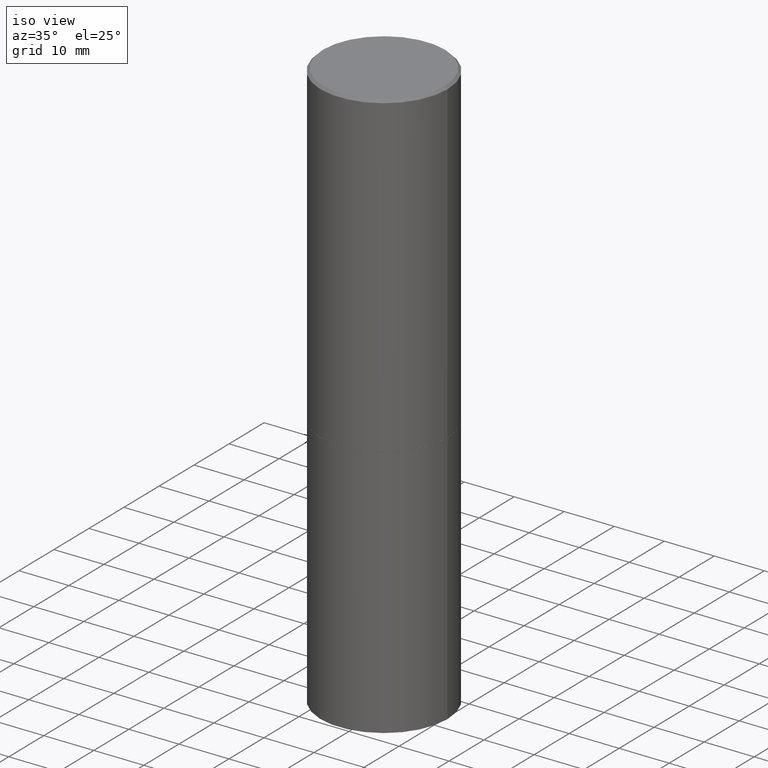
[diagram: clean part render]
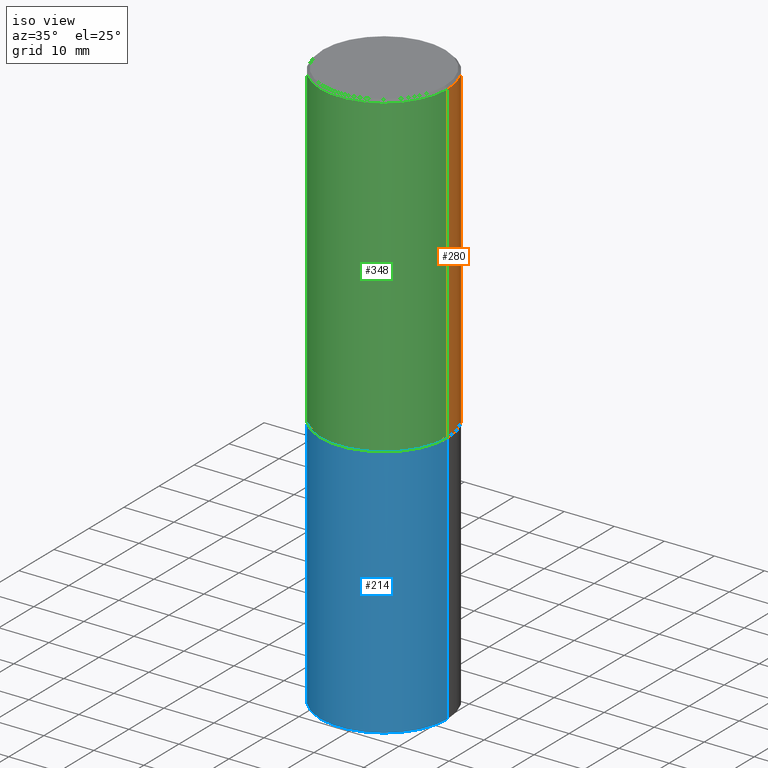
[diagram: same view with three faces highlighted in distinct colors, each labeled with its STEP entity id]
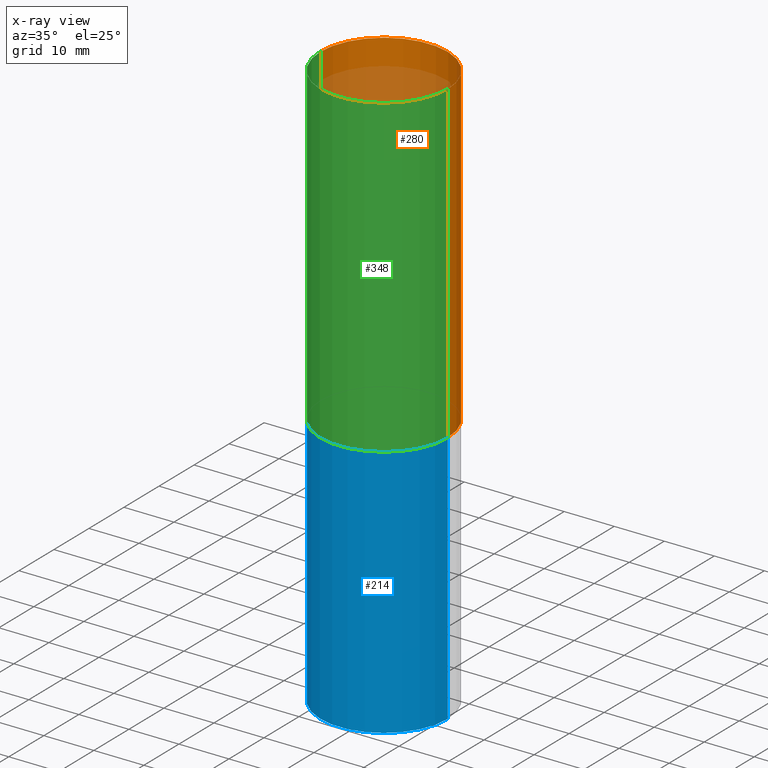
[diagram: x-ray of the same camera — body ghosted, the three highlighted faces saturated]
A machine part, iso view with three faces highlighted in distinct colors.
The next image is the same camera in x-ray (body ghosted, the three faces saturated) — at least one of them is partly hidden behind the body in this view.
Their STEP definitions:

[orange] entity #280 — the highlighted cylindrical surface (partial cylindrical patch) has radius 12.7 mm, axis along (-0, 0, 1).
#8 = VERTEX_POINT ( 'NONE', #13 ) ;
#13 = CARTESIAN_POINT ( 'NONE',  ( -0.4999999999999996669, 3.421651712066267691E-15, -0.02000000000000008021 ) ) ;
#18 = CIRCLE ( 'NONE', #252, 0.5000000000000000000 ) ;
#21 = CARTESIAN_POINT ( 'NONE',  ( 4.890937612370293302E-31, -6.982962677686318726E-17, -0.02000000000000008021 ) ) ;
#22 = DIRECTION ( 'NONE',  ( -2.445468806185136597E-29, 3.491481338843145583E-15, 1.000000000000000000 ) ) ;
#26 = FACE_OUTER_BOUND ( 'NONE', #207, .T. ) ;
#34 = VERTEX_POINT ( 'NONE', #265 ) ;
#46 = CARTESIAN_POINT ( 'NONE',  ( 0.4999999999999998335, -3.491481338843132566E-15, 2.438088387897967336E-29 ) ) ;
#78 = LINE ( 'NONE', #46, #108 ) ;
#80 = DIRECTION ( 'NONE',  ( 1.000000000000000000, -6.982962677686267499E-15, 4.876176775795936353E-29 ) ) ;
#82 = VECTOR ( 'NONE', #244, 39.37007874015748143 ) ;
#84 = CARTESIAN_POINT ( 'NONE',  ( 0.5000000000000000000, -1.221669320461215371E-14, -2.499000000000000110 ) ) ;
#91 = ORIENTED_EDGE ( 'NONE', *, *, #229, .F. ) ;
#105 = DIRECTION ( 'NONE',  ( -2.445468806185136597E-29, 3.491481338843145583E-15, 1.000000000000000000 ) ) ;
#106 = CARTESIAN_POINT ( 'NONE',  ( -0.5000000000000000000, -8.448070674724411945E-16, -2.499000000000000110 ) ) ;
#108 = VECTOR ( 'NONE', #364, 39.37007874015748143 ) ;
#110 = CYLINDRICAL_SURFACE ( 'NONE', #134, 0.4999999999999998335 ) ;
#132 = LINE ( 'NONE', #223, #82 ) ;
#134 = AXIS2_PLACEMENT_3D ( 'NONE', #250, #169, #80 ) ;
#136 = EDGE_CURVE ( 'NONE', #321, #34, #78, .T. ) ;
#143 = VERTEX_POINT ( 'NONE', #106 ) ;
#167 = EDGE_CURVE ( 'NONE', #143, #8, #132, .T. ) ;
#169 = DIRECTION ( 'NONE',  ( -2.445468806185136597E-29, 3.491481338843145583E-15, 1.000000000000000000 ) ) ;
#180 = ORIENTED_EDGE ( 'NONE', *, *, #167, .T. ) ;
#205 = AXIS2_PLACEMENT_3D ( 'NONE', #21, #22, #304 ) ;
#207 = EDGE_LOOP ( 'NONE', ( #315, #180, #91, #336 ) ) ;
#222 = DIRECTION ( 'NONE',  ( 1.000000000000000000, -6.982962677686265133E-15, 0.000000000000000000 ) ) ;
#223 = CARTESIAN_POINT ( 'NONE',  ( -0.4999999999999998335, 3.552713678800499746E-15, -2.459467545127452330E-29 ) ) ;
#229 = EDGE_CURVE ( 'NONE', #34, #8, #333, .T. ) ;
#244 = DIRECTION ( 'NONE',  ( -2.445468806185136877E-29, 3.491481338843145188E-15, 1.000000000000000000 ) ) ;
#250 = CARTESIAN_POINT ( 'NONE',  ( 0.000000000000000000, 0.000000000000000000, 0.000000000000000000 ) ) ;
#252 = AXIS2_PLACEMENT_3D ( 'NONE', #363, #105, #222 ) ;
#265 = CARTESIAN_POINT ( 'NONE',  ( 0.4999999999999996669, -3.500078625662626713E-15, -0.02000000000000008021 ) ) ;
#277 = EDGE_CURVE ( 'NONE', #321, #143, #18, .T. ) ;
#280 = ADVANCED_FACE ( 'NONE', ( #26 ), #110, .T. ) ;
#304 = DIRECTION ( 'NONE',  ( 1.000000000000000000, -6.982962677686266711E-15, 0.000000000000000000 ) ) ;
#315 = ORIENTED_EDGE ( 'NONE', *, *, #277, .T. ) ;
#321 = VERTEX_POINT ( 'NONE', #84 ) ;
#333 = CIRCLE ( 'NONE', #205, 0.4999999999999996669 ) ;
#336 = ORIENTED_EDGE ( 'NONE', *, *, #136, .F. ) ;
#363 = CARTESIAN_POINT ( 'NONE',  ( 6.111226546656657010E-29, -8.725211865769021935E-15, -2.499000000000000110 ) ) ;
#364 = DIRECTION ( 'NONE',  ( -2.445468806185136877E-29, 3.491481338843145188E-15, 1.000000000000000000 ) ) ;

[blue] entity #214 — the highlighted cylindrical surface (partial cylindrical patch) has radius 12.7 mm, axis along (-0, 0, 1).
#5 = CIRCLE ( 'NONE', #316, 0.5000000000000000000 ) ;
#15 = ORIENTED_EDGE ( 'NONE', *, *, #330, .T. ) ;
#17 = EDGE_LOOP ( 'NONE', ( #236, #15, #226, #186 ) ) ;
#48 = CYLINDRICAL_SURFACE ( 'NONE', #302, 0.5000000000000000000 ) ;
#61 = VERTEX_POINT ( 'NONE', #130 ) ;
#62 = VERTEX_POINT ( 'NONE', #242 ) ;
#70 = DIRECTION ( 'NONE',  ( 1.000000000000000000, -6.982962677686269077E-15, 0.000000000000000000 ) ) ;
#72 = EDGE_CURVE ( 'NONE', #61, #62, #5, .T. ) ;
#96 = CIRCLE ( 'NONE', #247, 0.5000000000000000000 ) ;
#101 = CARTESIAN_POINT ( 'NONE',  ( 0.5000000000000000000, -1.920314736363729025E-14, -4.500000000000000000 ) ) ;
#121 = VERTEX_POINT ( 'NONE', #101 ) ;
#130 = CARTESIAN_POINT ( 'NONE',  ( -0.5000000000000000000, -8.667471007150509990E-15, -2.500000000000000000 ) ) ;
#131 = LINE ( 'NONE', #332, #198 ) ;
#139 = EDGE_CURVE ( 'NONE', #121, #62, #164, .T. ) ;
#157 = CARTESIAN_POINT ( 'NONE',  ( 0.5000000000000000000, -3.491481338843133355E-15, 2.438088387897967896E-29 ) ) ;
#159 = CARTESIAN_POINT ( 'NONE',  ( 0.000000000000000000, 0.000000000000000000, 0.000000000000000000 ) ) ;
#164 = LINE ( 'NONE', #157, #312 ) ;
#172 = CARTESIAN_POINT ( 'NONE',  ( -0.5000000000000000000, -8.667471007150509990E-15, -4.500000000000000000 ) ) ;
#177 = EDGE_CURVE ( 'NONE', #365, #61, #131, .T. ) ;
#186 = ORIENTED_EDGE ( 'NONE', *, *, #72, .F. ) ;
#191 = DIRECTION ( 'NONE',  ( 1.000000000000000000, -6.982962677686266711E-15, 4.876176775795935793E-29 ) ) ;
#198 = VECTOR ( 'NONE', #303, 39.37007874015748143 ) ;
#201 = DIRECTION ( 'NONE',  ( 1.000000000000000000, -6.982962677686266711E-15, 0.000000000000000000 ) ) ;
#214 = ADVANCED_FACE ( 'NONE', ( #246 ), #48, .T. ) ;
#215 = DIRECTION ( 'NONE',  ( -2.445468806185136597E-29, 3.491481338843145583E-15, 1.000000000000000000 ) ) ;
#226 = ORIENTED_EDGE ( 'NONE', *, *, #139, .T. ) ;
#227 = CARTESIAN_POINT ( 'NONE',  ( 1.100460962783311469E-28, -1.571166602479415690E-14, -4.500000000000000000 ) ) ;
#236 = ORIENTED_EDGE ( 'NONE', *, *, #177, .F. ) ;
#242 = CARTESIAN_POINT ( 'NONE',  ( 0.5000000000000000000, -1.222018468595099830E-14, -2.500000000000000000 ) ) ;
#246 = FACE_OUTER_BOUND ( 'NONE', #17, .T. ) ;
#247 = AXIS2_PLACEMENT_3D ( 'NONE', #227, #311, #201 ) ;
#270 = DIRECTION ( 'NONE',  ( -2.445468806185136877E-29, 3.491481338843145188E-15, 1.000000000000000000 ) ) ;
#302 = AXIS2_PLACEMENT_3D ( 'NONE', #159, #359, #191 ) ;
#303 = DIRECTION ( 'NONE',  ( -2.445468806185136877E-29, 3.491481338843145188E-15, 1.000000000000000000 ) ) ;
#311 = DIRECTION ( 'NONE',  ( -2.445468806185136597E-29, 3.491481338843145583E-15, 1.000000000000000000 ) ) ;
#312 = VECTOR ( 'NONE', #270, 39.37007874015748143 ) ;
#316 = AXIS2_PLACEMENT_3D ( 'NONE', #356, #215, #70 ) ;
#330 = EDGE_CURVE ( 'NONE', #365, #121, #96, .T. ) ;
#332 = CARTESIAN_POINT ( 'NONE',  ( -0.5000000000000000000, 3.552713678800500929E-15, -2.459467545127452891E-29 ) ) ;
#356 = CARTESIAN_POINT ( 'NONE',  ( 6.113672015462842613E-29, -8.728703347107864943E-15, -2.500000000000000000 ) ) ;
#359 = DIRECTION ( 'NONE',  ( -2.445468806185136597E-29, 3.491481338843145583E-15, 1.000000000000000000 ) ) ;
#365 = VERTEX_POINT ( 'NONE', #172 ) ;

[green] entity #348 — the highlighted cylindrical surface (partial cylindrical patch) has radius 12.7 mm, axis along (-0, 0, 1).
#8 = VERTEX_POINT ( 'NONE', #13 ) ;
#13 = CARTESIAN_POINT ( 'NONE',  ( -0.4999999999999996669, 3.421651712066267691E-15, -0.02000000000000008021 ) ) ;
#28 = EDGE_CURVE ( 'NONE', #8, #34, #107, .T. ) ;
#31 = CYLINDRICAL_SURFACE ( 'NONE', #366, 0.4999999999999998335 ) ;
#33 = DIRECTION ( 'NONE',  ( -2.445468806185136597E-29, 3.491481338843145583E-15, 1.000000000000000000 ) ) ;
#34 = VERTEX_POINT ( 'NONE', #265 ) ;
#46 = CARTESIAN_POINT ( 'NONE',  ( 0.4999999999999998335, -3.491481338843132566E-15, 2.438088387897967336E-29 ) ) ;
#52 = CIRCLE ( 'NONE', #124, 0.5000000000000000000 ) ;
#54 = DIRECTION ( 'NONE',  ( 1.000000000000000000, -6.982962677686267499E-15, 4.876176775795936353E-29 ) ) ;
#57 = FACE_OUTER_BOUND ( 'NONE', #255, .T. ) ;
#78 = LINE ( 'NONE', #46, #108 ) ;
#82 = VECTOR ( 'NONE', #244, 39.37007874015748143 ) ;
#84 = CARTESIAN_POINT ( 'NONE',  ( 0.5000000000000000000, -1.221669320461215371E-14, -2.499000000000000110 ) ) ;
#85 = ORIENTED_EDGE ( 'NONE', *, *, #111, .T. ) ;
#106 = CARTESIAN_POINT ( 'NONE',  ( -0.5000000000000000000, -8.448070674724411945E-16, -2.499000000000000110 ) ) ;
#107 = CIRCLE ( 'NONE', #162, 0.4999999999999996669 ) ;
#108 = VECTOR ( 'NONE', #364, 39.37007874015748143 ) ;
#111 = EDGE_CURVE ( 'NONE', #143, #321, #52, .T. ) ;
#124 = AXIS2_PLACEMENT_3D ( 'NONE', #331, #217, #137 ) ;
#132 = LINE ( 'NONE', #223, #82 ) ;
#136 = EDGE_CURVE ( 'NONE', #321, #34, #78, .T. ) ;
#137 = DIRECTION ( 'NONE',  ( 1.000000000000000000, -6.982962677686265133E-15, 0.000000000000000000 ) ) ;
#143 = VERTEX_POINT ( 'NONE', #106 ) ;
#148 = DIRECTION ( 'NONE',  ( -2.445468806185136597E-29, 3.491481338843145583E-15, 1.000000000000000000 ) ) ;
#162 = AXIS2_PLACEMENT_3D ( 'NONE', #213, #148, #325 ) ;
#167 = EDGE_CURVE ( 'NONE', #143, #8, #132, .T. ) ;
#213 = CARTESIAN_POINT ( 'NONE',  ( 4.890937612370293302E-31, -6.982962677686318726E-17, -0.02000000000000008021 ) ) ;
#217 = DIRECTION ( 'NONE',  ( -2.445468806185136597E-29, 3.491481338843145583E-15, 1.000000000000000000 ) ) ;
#223 = CARTESIAN_POINT ( 'NONE',  ( -0.4999999999999998335, 3.552713678800499746E-15, -2.459467545127452330E-29 ) ) ;
#244 = DIRECTION ( 'NONE',  ( -2.445468806185136877E-29, 3.491481338843145188E-15, 1.000000000000000000 ) ) ;
#255 = EDGE_LOOP ( 'NONE', ( #293, #85, #266, #309 ) ) ;
#265 = CARTESIAN_POINT ( 'NONE',  ( 0.4999999999999996669, -3.500078625662626713E-15, -0.02000000000000008021 ) ) ;
#266 = ORIENTED_EDGE ( 'NONE', *, *, #136, .T. ) ;
#293 = ORIENTED_EDGE ( 'NONE', *, *, #167, .F. ) ;
#308 = CARTESIAN_POINT ( 'NONE',  ( 0.000000000000000000, 0.000000000000000000, 0.000000000000000000 ) ) ;
#309 = ORIENTED_EDGE ( 'NONE', *, *, #28, .F. ) ;
#321 = VERTEX_POINT ( 'NONE', #84 ) ;
#325 = DIRECTION ( 'NONE',  ( 1.000000000000000000, -6.982962677686266711E-15, 0.000000000000000000 ) ) ;
#331 = CARTESIAN_POINT ( 'NONE',  ( 6.111226546656657010E-29, -8.725211865769021935E-15, -2.499000000000000110 ) ) ;
#348 = ADVANCED_FACE ( 'NONE', ( #57 ), #31, .T. ) ;
#364 = DIRECTION ( 'NONE',  ( -2.445468806185136877E-29, 3.491481338843145188E-15, 1.000000000000000000 ) ) ;
#366 = AXIS2_PLACEMENT_3D ( 'NONE', #308, #33, #54 ) ;